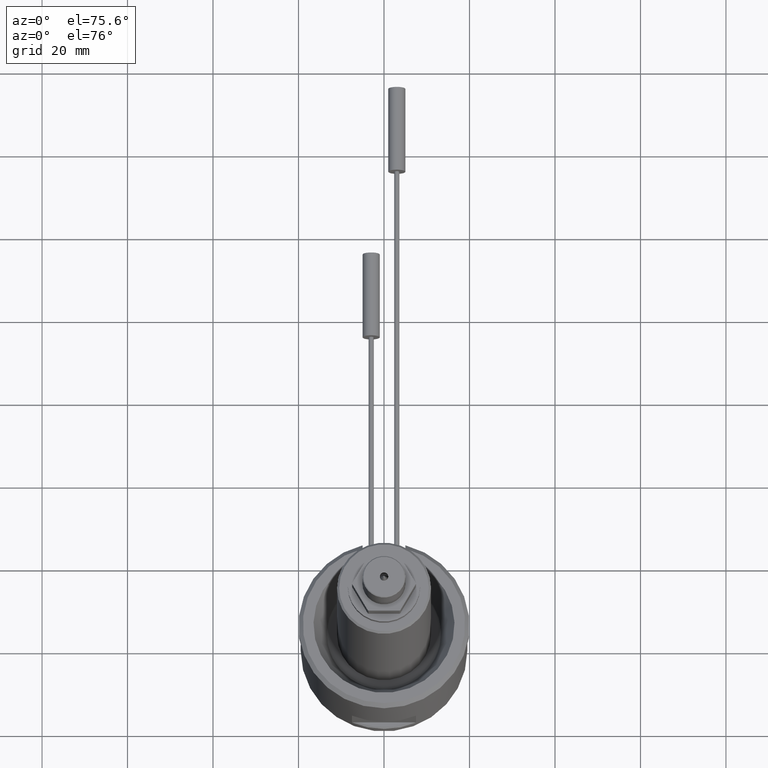
[diagram: clean part render]
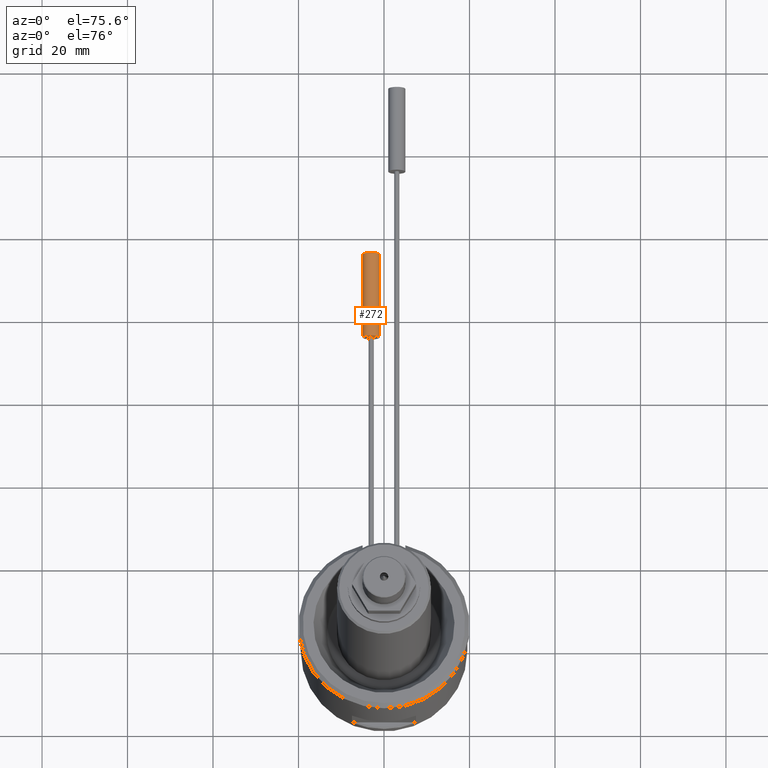
[diagram: same view with one face highlighted and labeled with its STEP entity id]
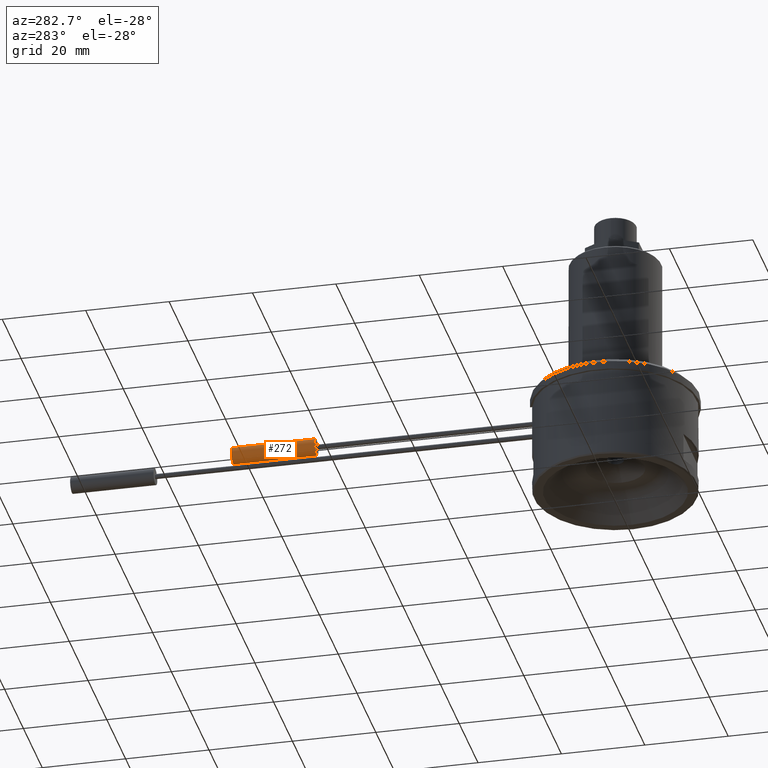
[diagram: same view with one face highlighted and labeled with its STEP entity id]
A machine part, auxiliary view. The second image highlights one B-rep face of the part: STEP entity #272.
A second angle (auxiliary view) of the same face is appended — the face is thin or edge-on in the first view.
In plain terms, the highlighted cylindrical surface (bore or boss wall) has radius 2 mm, axis along (0, -1, 0).
Its self-contained STEP definition (entity closure, byte-faithful):
#52=CYLINDRICAL_SURFACE('',#1222,2.);
#272=ADVANCED_FACE('',(#393,#394),#52,.T.);
#393=FACE_BOUND('',#484,.T.);
#394=FACE_BOUND('',#485,.T.);
#484=EDGE_LOOP('',(#714));
#485=EDGE_LOOP('',(#715));
#714=ORIENTED_EDGE('',*,*,#1039,.F.);
#715=ORIENTED_EDGE('',*,*,#1040,.T.);
#899=VERTEX_POINT('',#2240);
#900=VERTEX_POINT('',#2242);
#1039=EDGE_CURVE('',#899,#899,#1106,.T.);
#1040=EDGE_CURVE('',#900,#900,#1107,.T.);
#1106=CIRCLE('',#1220,2.);
#1107=CIRCLE('',#1221,2.);
#1220=AXIS2_PLACEMENT_3D('',#2239,#1515,#1516);
#1221=AXIS2_PLACEMENT_3D('',#2241,#1517,#1518);
#1222=AXIS2_PLACEMENT_3D('',#2243,#1519,#1520);
#1515=DIRECTION('',(0.,1.,0.));
#1516=DIRECTION('',(1.,0.,0.));
#1517=DIRECTION('',(0.,1.,0.));
#1518=DIRECTION('',(1.,0.,0.));
#1519=DIRECTION('',(0.,-1.,0.));
#1520=DIRECTION('',(0.,0.,-0.999999999999999));
#2239=CARTESIAN_POINT('',(-3.,91.,18.5));
#2240=CARTESIAN_POINT('',(-0.999999999999999,91.,18.5));
#2241=CARTESIAN_POINT('',(-3.,71.,18.5));
#2242=CARTESIAN_POINT('',(-0.999999999999999,71.,18.5));
#2243=CARTESIAN_POINT('',(-3.,91.,18.5));